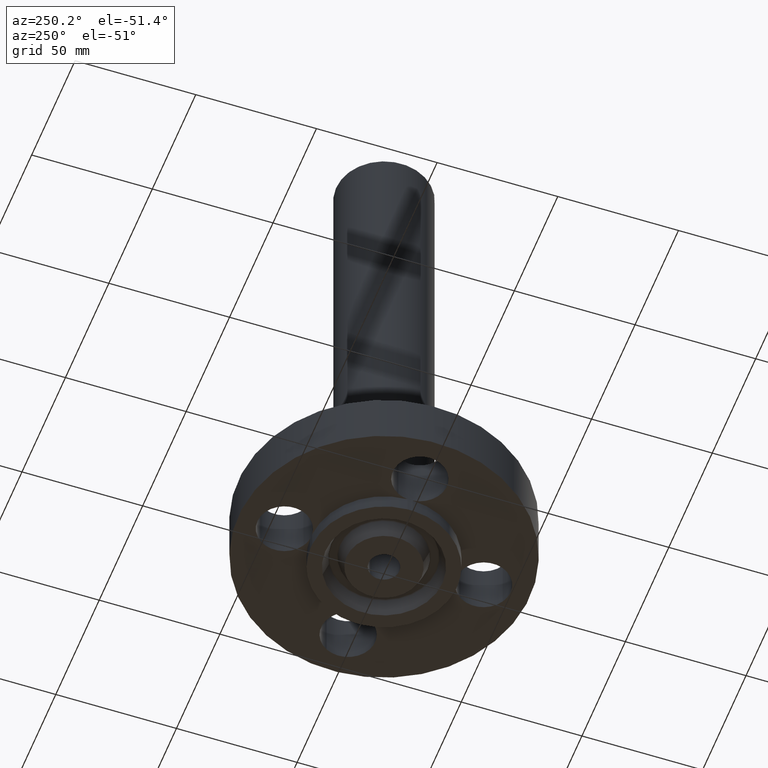
[diagram: clean part render]
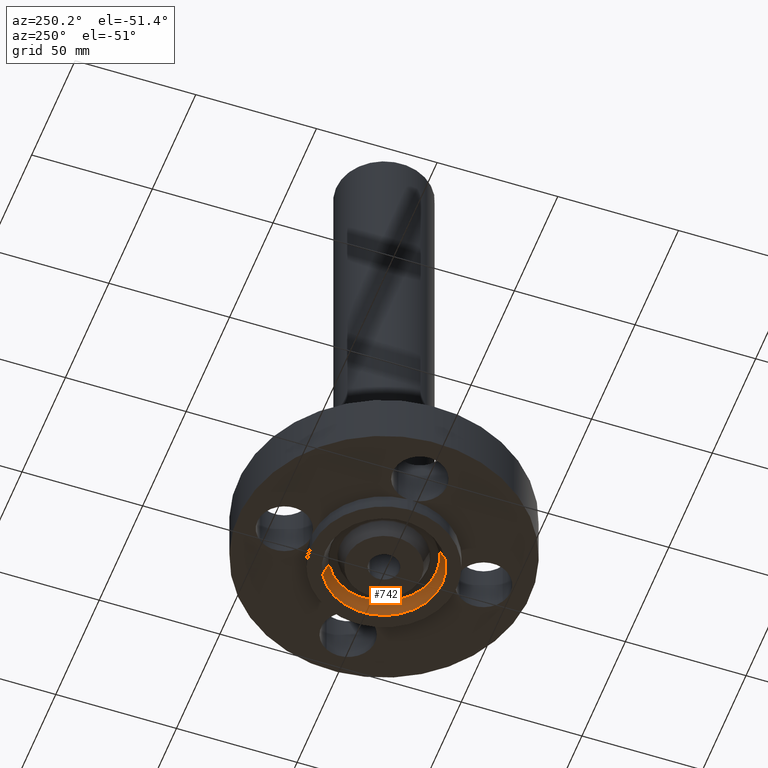
[diagram: same view with one face highlighted and labeled with its STEP entity id]
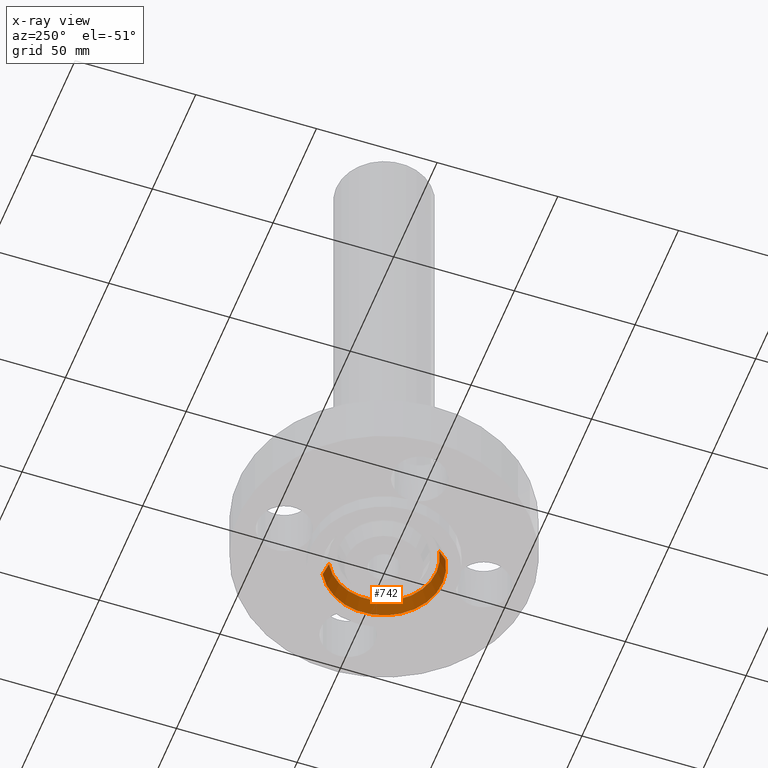
[diagram: x-ray of the same camera — body ghosted, the highlighted face saturated]
A machine part, auxiliary view. The second image highlights one B-rep face of the part: STEP entity #742.
The next image is the same camera in x-ray: the body ghosted, the highlighted face saturated — about 0% of this face is hidden behind the body in this view.
In plain terms, the highlighted conical surface has half-angle 23 deg.
Its self-contained STEP definition (entity closure, byte-faithful):
#394=AXIS2_PLACEMENT_3D('Circle Axis2P3D',#392,#393,$) ;
#704=AXIS2_PLACEMENT_3D('Circle Axis2P3D',#702,#703,$) ;
#717=AXIS2_PLACEMENT_3D('Cone Axis2P3D',#714,#715,#716) ;
#392=CARTESIAN_POINT('Axis2P3D Location',(0.,0.,-0.250000000001)) ;
#396=CARTESIAN_POINT('Vertex',(0.457132251061,0.836774972766,-0.250000000001)) ;
#398=CARTESIAN_POINT('Vertex',(-0.457132251061,-0.836774972766,-0.250000000001)) ;
#680=CARTESIAN_POINT('Vertex',(-0.410099883712,-0.750682801811,-0.0188873350169)) ;
#687=CARTESIAN_POINT('Vertex',(0.410099883712,0.750682801811,-0.0188873350169)) ;
#702=CARTESIAN_POINT('Axis2P3D Location',(0.,0.,-0.0188873350169)) ;
#714=CARTESIAN_POINT('Axis2P3D Location',(0.,0.,-0.0188873350169)) ;
#719=CARTESIAN_POINT('Line Origine',(-0.433616067387,-0.793728887289,-0.134443667509)) ;
#724=CARTESIAN_POINT('Line Origine',(0.433616067387,0.793728887289,-0.134443667509)) ;
#393=DIRECTION('Axis2P3D Direction',(0.,0.,-0.0393700787402)) ;
#703=DIRECTION('Axis2P3D Direction',(0.,0.,-0.0393700787402)) ;
#715=DIRECTION('Axis2P3D Direction',(0.,0.,-0.0393700787402)) ;
#716=DIRECTION('Axis2P3D XDirection',(0.0188750212049,0.0345504945626,0.)) ;
#720=DIRECTION('Vector Direction',(-0.00737505833565,-0.0134999537303,-0.0362403485611)) ;
#725=DIRECTION('Vector Direction',(0.00737505833565,0.0134999537303,-0.0362403485611)) ;
#721=VECTOR('Line Direction',#720,0.0393700787402) ;
#726=VECTOR('Line Direction',#725,0.0393700787402) ;
#737=ORIENTED_EDGE('',*,*,#706,.F.) ;
#738=ORIENTED_EDGE('',*,*,#728,.T.) ;
#739=ORIENTED_EDGE('',*,*,#400,.T.) ;
#740=ORIENTED_EDGE('',*,*,#723,.F.) ;
#742=ADVANCED_FACE('PartBody',(#741),#718,.F.) ;
#395=CIRCLE('generated circle',#394,0.953500000004) ;
#705=CIRCLE('generated circle',#704,0.855398494011) ;
#718=CONICAL_SURFACE('Cone',#717,0.855398494011,0.401425727959) ;
#400=EDGE_CURVE('',#397,#399,#395,.T.) ;
#706=EDGE_CURVE('',#688,#681,#705,.T.) ;
#723=EDGE_CURVE('',#681,#399,#722,.T.) ;
#728=EDGE_CURVE('',#688,#397,#727,.T.) ;
#736=EDGE_LOOP('',(#737,#738,#739,#740)) ;
#741=FACE_OUTER_BOUND('',#736,.T.) ;
#722=LINE('Line',#719,#721) ;
#727=LINE('Line',#724,#726) ;
#397=VERTEX_POINT('',#396) ;
#399=VERTEX_POINT('',#398) ;
#681=VERTEX_POINT('',#680) ;
#688=VERTEX_POINT('',#687) ;